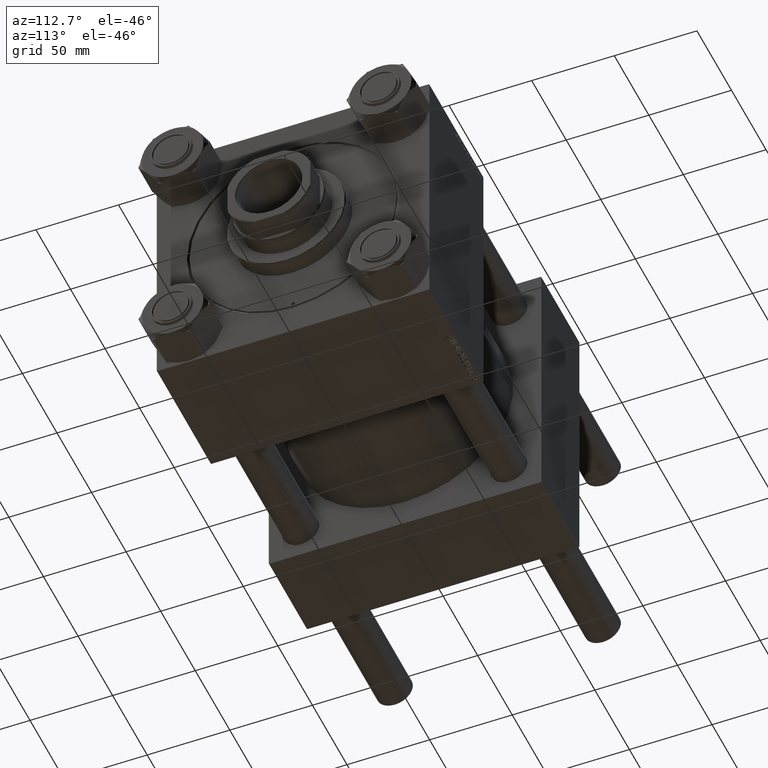
[diagram: clean part render]
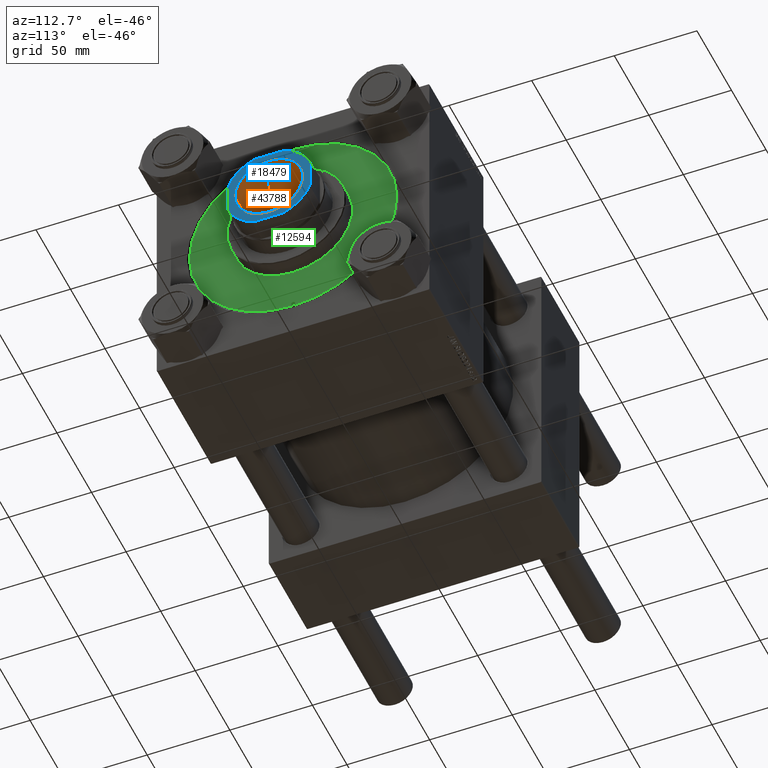
[diagram: same view with three faces highlighted in distinct colors, each labeled with its STEP entity id]
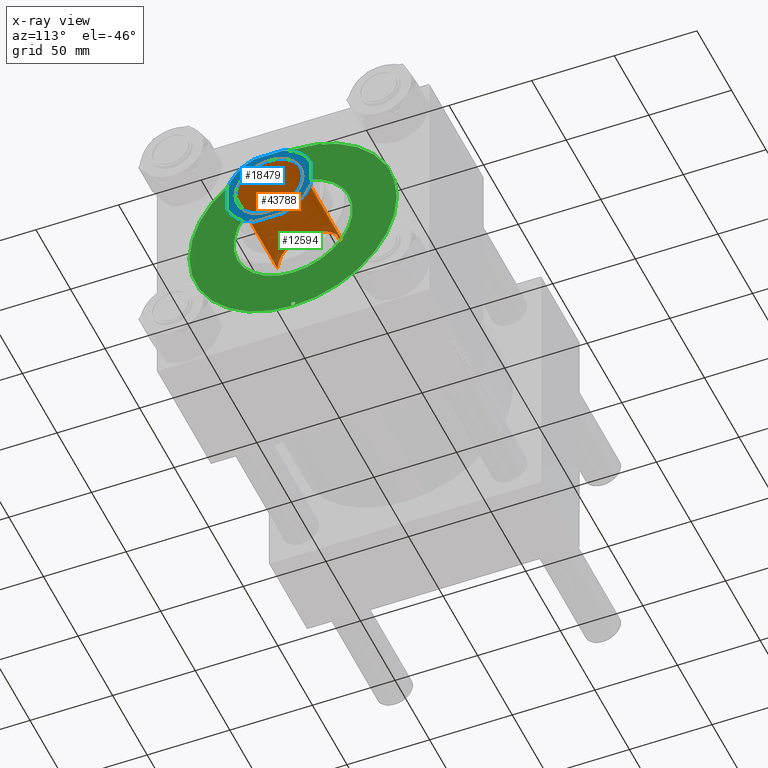
[diagram: x-ray of the same camera — body ghosted, the three highlighted faces saturated]
A machine part, auxiliary view with three faces highlighted in distinct colors.
The next image is the same camera in x-ray (body ghosted, the three faces saturated) — at least one of them is partly hidden behind the body in this view.
Their STEP definitions:

[orange] entity #43788 — the highlighted cylindrical surface (edge-blend (fillet) strip) has radius 20.25 mm, axis along (1, 0, -0).
#320 = CIRCLE ( 'NONE', #40222, 20.24999999999998934 ) ;
#1163 = DIRECTION ( 'NONE',  ( -0.000000000000000000, -0.000000000000000000, 1.000000000000000000 ) ) ;
#3609 = ORIENTED_EDGE ( 'NONE', *, *, #42634, .F. ) ;
#5746 = DIRECTION ( 'NONE',  ( 1.000000000000000000, 0.000000000000000000, 0.000000000000000000 ) ) ;
#5827 = ORIENTED_EDGE ( 'NONE', *, *, #22375, .T. ) ;
#6507 = DIRECTION ( 'NONE',  ( 0.000000000000000000, 0.000000000000000000, 1.000000000000000000 ) ) ;
#8590 = LINE ( 'NONE', #44257, #47718 ) ;
#9562 = CIRCLE ( 'NONE', #14329, 20.24999999999999289 ) ;
#13128 = CARTESIAN_POINT ( 'NONE',  ( 20.24999999999998934, 0.000000000000000000, 136.0000000000000000 ) ) ;
#13964 = CARTESIAN_POINT ( 'NONE',  ( 20.24999999999999289, 0.000000000000000000, 196.7000000000001023 ) ) ;
#14329 = AXIS2_PLACEMENT_3D ( 'NONE', #17985, #6507, #18244 ) ;
#16259 = LINE ( 'NONE', #28243, #17721 ) ;
#17010 = DIRECTION ( 'NONE',  ( -0.000000000000000000, -0.000000000000000000, 1.000000000000000000 ) ) ;
#17721 = VECTOR ( 'NONE', #17010, 1000.000000000000000 ) ;
#17985 = CARTESIAN_POINT ( 'NONE',  ( 0.000000000000000000, 0.000000000000000000, 196.7000000000001023 ) ) ;
#18113 = EDGE_CURVE ( 'NONE', #33487, #25080, #9562, .T. ) ;
#18244 = DIRECTION ( 'NONE',  ( 1.000000000000000000, 0.000000000000000000, 0.000000000000000000 ) ) ;
#18862 = EDGE_CURVE ( 'NONE', #41903, #25080, #8590, .T. ) ;
#21559 = CARTESIAN_POINT ( 'NONE',  ( 0.000000000000000000, 0.000000000000000000, 136.0000000000000000 ) ) ;
#22375 = EDGE_CURVE ( 'NONE', #49005, #33487, #16259, .T. ) ;
#24411 = CARTESIAN_POINT ( 'NONE',  ( -20.24999999999999289, 2.479909768273389511E-15, 196.7000000000001023 ) ) ;
#25080 = VERTEX_POINT ( 'NONE', #13964 ) ;
#27764 = CARTESIAN_POINT ( 'NONE',  ( 0.000000000000000000, 0.000000000000000000, 197.0000000000000000 ) ) ;
#28243 = CARTESIAN_POINT ( 'NONE',  ( -20.24999999999999289, 2.479909768273389511E-15, 197.0000000000000000 ) ) ;
#28774 = FACE_OUTER_BOUND ( 'NONE', #35339, .T. ) ;
#28956 = DIRECTION ( 'NONE',  ( -0.000000000000000000, -0.000000000000000000, 1.000000000000000000 ) ) ;
#30613 = AXIS2_PLACEMENT_3D ( 'NONE', #27764, #43565, #44315 ) ;
#33487 = VERTEX_POINT ( 'NONE', #24411 ) ;
#35339 = EDGE_LOOP ( 'NONE', ( #3609, #5827, #43770, #48861 ) ) ;
#39532 = CARTESIAN_POINT ( 'NONE',  ( -20.24999999999998934, 2.479909768273389117E-15, 136.0000000000000000 ) ) ;
#40222 = AXIS2_PLACEMENT_3D ( 'NONE', #21559, #28956, #5746 ) ;
#41903 = VERTEX_POINT ( 'NONE', #13128 ) ;
#42634 = EDGE_CURVE ( 'NONE', #49005, #41903, #320, .T. ) ;
#43565 = DIRECTION ( 'NONE',  ( -0.000000000000000000, -0.000000000000000000, 1.000000000000000000 ) ) ;
#43770 = ORIENTED_EDGE ( 'NONE', *, *, #18113, .T. ) ;
#43788 = ADVANCED_FACE ( 'NONE', ( #28774 ), #44061, .F. ) ;
#44061 = CYLINDRICAL_SURFACE ( 'NONE', #30613, 20.24999999999999289 ) ;
#44257 = CARTESIAN_POINT ( 'NONE',  ( 20.24999999999999289, 0.000000000000000000, 197.0000000000000000 ) ) ;
#44315 = DIRECTION ( 'NONE',  ( 1.000000000000000000, 0.000000000000000000, 0.000000000000000000 ) ) ;
#47718 = VECTOR ( 'NONE', #1163, 1000.000000000000000 ) ;
#48861 = ORIENTED_EDGE ( 'NONE', *, *, #18862, .F. ) ;
#49005 = VERTEX_POINT ( 'NONE', #39532 ) ;

[blue] entity #18479 — the highlighted planar face has unit normal (1, 0, -0).
#416 = EDGE_CURVE ( 'NONE', #611, #37411, #36644, .T. ) ;
#611 = VERTEX_POINT ( 'NONE', #34839 ) ;
#1098 = EDGE_CURVE ( 'NONE', #40628, #19901, #6418, .T. ) ;
#1659 = VECTOR ( 'NONE', #27994, 1000.000000000000000 ) ;
#2266 = CIRCLE ( 'NONE', #9664, 20.54999999999990123 ) ;
#2688 = CARTESIAN_POINT ( 'NONE',  ( 25.00000000000000355, 8.789197915623503832, 197.0000000000000000 ) ) ;
#3075 = DIRECTION ( 'NONE',  ( 1.000000000000000000, 0.000000000000000000, 0.000000000000000000 ) ) ;
#3245 = EDGE_CURVE ( 'NONE', #37411, #32639, #10127, .T. ) ;
#3558 = DIRECTION ( 'NONE',  ( -0.000000000000000000, 0.000000000000000000, 1.000000000000000000 ) ) ;
#3652 = ORIENTED_EDGE ( 'NONE', *, *, #24785, .T. ) ;
#4010 = ORIENTED_EDGE ( 'NONE', *, *, #3245, .T. ) ;
#4304 = PLANE ( 'NONE',  #43737 ) ;
#4508 = CARTESIAN_POINT ( 'NONE',  ( 0.000000000000000000, 0.000000000000000000, 197.0000000000000000 ) ) ;
#4538 = CARTESIAN_POINT ( 'NONE',  ( -24.99999999999999289, -25.00000000000000000, 197.0000000000000000 ) ) ;
#5404 = CIRCLE ( 'NONE', #42033, 26.50000000000008171 ) ;
#5411 = CARTESIAN_POINT ( 'NONE',  ( 0.000000000000000000, 0.000000000000000000, 197.0000000000000000 ) ) ;
#6012 = EDGE_CURVE ( 'NONE', #40192, #19705, #32584, .T. ) ;
#6275 = DIRECTION ( 'NONE',  ( 1.000000000000000000, 0.000000000000000000, 0.000000000000000000 ) ) ;
#6289 = CARTESIAN_POINT ( 'NONE',  ( -25.00000000000000000, 25.00000000000000000, 197.0000000000000000 ) ) ;
#6418 = LINE ( 'NONE', #15764, #28797 ) ;
#6537 = DIRECTION ( 'NONE',  ( 1.387778780781445676E-16, -1.000000000000000000, 0.000000000000000000 ) ) ;
#7062 = AXIS2_PLACEMENT_3D ( 'NONE', #4508, #20074, #43767 ) ;
#7842 = DIRECTION ( 'NONE',  ( 1.000000000000000000, 0.000000000000000000, 0.000000000000000000 ) ) ;
#8058 = VERTEX_POINT ( 'NONE', #37062 ) ;
#9322 = CARTESIAN_POINT ( 'NONE',  ( -20.54999999999990123, 2.516649172247798933E-15, 197.0000000000000000 ) ) ;
#9345 = VERTEX_POINT ( 'NONE', #17634 ) ;
#9380 = DIRECTION ( 'NONE',  ( -1.387778780781445676E-16, 1.000000000000000000, -0.000000000000000000 ) ) ;
#9664 = AXIS2_PLACEMENT_3D ( 'NONE', #21938, #37252, #15043 ) ;
#10127 = CIRCLE ( 'NONE', #13387, 26.50000000000004619 ) ;
#10687 = ORIENTED_EDGE ( 'NONE', *, *, #6012, .T. ) ;
#11441 = EDGE_CURVE ( 'NONE', #8058, #42724, #33892, .T. ) ;
#11611 = EDGE_LOOP ( 'NONE', ( #14983, #3652 ) ) ;
#13387 = AXIS2_PLACEMENT_3D ( 'NONE', #36112, #31050, #7842 ) ;
#13588 = ORIENTED_EDGE ( 'NONE', *, *, #20821, .T. ) ;
#14983 = ORIENTED_EDGE ( 'NONE', *, *, #11441, .T. ) ;
#15043 = DIRECTION ( 'NONE',  ( 1.000000000000000000, 0.000000000000000000, 0.000000000000000000 ) ) ;
#15764 = CARTESIAN_POINT ( 'NONE',  ( -25.00000000000000000, 25.00000000000000000, 197.0000000000000000 ) ) ;
#16074 = AXIS2_PLACEMENT_3D ( 'NONE', #5411, #17903, #17394 ) ;
#17206 = CARTESIAN_POINT ( 'NONE',  ( -8.789197915623610413, -25.00000000000000000, 197.0000000000000000 ) ) ;
#17394 = DIRECTION ( 'NONE',  ( 1.000000000000000000, 0.000000000000000000, 0.000000000000000000 ) ) ;
#17634 = CARTESIAN_POINT ( 'NONE',  ( 8.789197915623507384, -25.00000000000000000, 197.0000000000000000 ) ) ;
#17903 = DIRECTION ( 'NONE',  ( -0.000000000000000000, 0.000000000000000000, 1.000000000000000000 ) ) ;
#18239 = VECTOR ( 'NONE', #9380, 1000.000000000000000 ) ;
#18479 = ADVANCED_FACE ( 'NONE', ( #20126, #22947 ), #4304, .T. ) ;
#18892 = CARTESIAN_POINT ( 'NONE',  ( 0.000000000000000000, 0.000000000000000000, 197.0000000000000000 ) ) ;
#19537 = EDGE_CURVE ( 'NONE', #19901, #611, #5404, .T. ) ;
#19705 = VERTEX_POINT ( 'NONE', #2688 ) ;
#19901 = VERTEX_POINT ( 'NONE', #44967 ) ;
#20074 = DIRECTION ( 'NONE',  ( -0.000000000000000000, 0.000000000000000000, 1.000000000000000000 ) ) ;
#20126 = FACE_BOUND ( 'NONE', #11611, .T. ) ;
#20351 = CARTESIAN_POINT ( 'NONE',  ( 8.789197915623505608, 25.00000000000000000, 197.0000000000000000 ) ) ;
#20821 = EDGE_CURVE ( 'NONE', #19705, #40628, #46932, .T. ) ;
#21580 = ORIENTED_EDGE ( 'NONE', *, *, #416, .T. ) ;
#21938 = CARTESIAN_POINT ( 'NONE',  ( 0.000000000000000000, 0.000000000000000000, 197.0000000000000000 ) ) ;
#22204 = DIRECTION ( 'NONE',  ( -0.000000000000000000, 0.000000000000000000, 1.000000000000000000 ) ) ;
#22947 = FACE_OUTER_BOUND ( 'NONE', #34848, .T. ) ;
#23131 = EDGE_CURVE ( 'NONE', #9345, #40192, #43766, .T. ) ;
#23915 = LINE ( 'NONE', #4538, #1659 ) ;
#24093 = AXIS2_PLACEMENT_3D ( 'NONE', #25651, #41202, #6275 ) ;
#24785 = EDGE_CURVE ( 'NONE', #42724, #8058, #2266, .T. ) ;
#25651 = CARTESIAN_POINT ( 'NONE',  ( 0.000000000000000000, 0.000000000000000000, 197.0000000000000000 ) ) ;
#26990 = DIRECTION ( 'NONE',  ( -1.000000000000000000, -0.000000000000000000, -0.000000000000000000 ) ) ;
#27994 = DIRECTION ( 'NONE',  ( 1.000000000000000000, 0.000000000000000000, 0.000000000000000000 ) ) ;
#28797 = VECTOR ( 'NONE', #26990, 1000.000000000000000 ) ;
#31050 = DIRECTION ( 'NONE',  ( -0.000000000000000000, 0.000000000000000000, 1.000000000000000000 ) ) ;
#32584 = LINE ( 'NONE', #48123, #18239 ) ;
#32639 = VERTEX_POINT ( 'NONE', #17206 ) ;
#33589 = EDGE_CURVE ( 'NONE', #32639, #9345, #23915, .T. ) ;
#33892 = CIRCLE ( 'NONE', #24093, 20.54999999999990123 ) ;
#34682 = DIRECTION ( 'NONE',  ( 1.000000000000000000, 0.000000000000000000, 0.000000000000000000 ) ) ;
#34839 = CARTESIAN_POINT ( 'NONE',  ( -24.99999999999999645, 8.789197915623727653, 197.0000000000000000 ) ) ;
#34848 = EDGE_LOOP ( 'NONE', ( #10687, #13588, #41289, #44667, #21580, #4010, #46922, #40590 ) ) ;
#36112 = CARTESIAN_POINT ( 'NONE',  ( 0.000000000000000000, 0.000000000000000000, 197.0000000000000000 ) ) ;
#36644 = LINE ( 'NONE', #6289, #39347 ) ;
#37062 = CARTESIAN_POINT ( 'NONE',  ( 20.54999999999990123, 0.000000000000000000, 197.0000000000000000 ) ) ;
#37252 = DIRECTION ( 'NONE',  ( 0.000000000000000000, -0.000000000000000000, -1.000000000000000000 ) ) ;
#37411 = VERTEX_POINT ( 'NONE', #48031 ) ;
#38503 = CARTESIAN_POINT ( 'NONE',  ( 0.000000000000000000, 0.000000000000000000, 197.0000000000000000 ) ) ;
#39347 = VECTOR ( 'NONE', #6537, 1000.000000000000000 ) ;
#40192 = VERTEX_POINT ( 'NONE', #47708 ) ;
#40590 = ORIENTED_EDGE ( 'NONE', *, *, #23131, .T. ) ;
#40628 = VERTEX_POINT ( 'NONE', #20351 ) ;
#41202 = DIRECTION ( 'NONE',  ( 0.000000000000000000, -0.000000000000000000, -1.000000000000000000 ) ) ;
#41289 = ORIENTED_EDGE ( 'NONE', *, *, #1098, .T. ) ;
#42033 = AXIS2_PLACEMENT_3D ( 'NONE', #18892, #22204, #3075 ) ;
#42724 = VERTEX_POINT ( 'NONE', #9322 ) ;
#43737 = AXIS2_PLACEMENT_3D ( 'NONE', #38503, #3558, #34682 ) ;
#43766 = CIRCLE ( 'NONE', #16074, 26.50000000000001421 ) ;
#43767 = DIRECTION ( 'NONE',  ( 1.000000000000000000, 0.000000000000000000, 0.000000000000000000 ) ) ;
#44667 = ORIENTED_EDGE ( 'NONE', *, *, #19537, .T. ) ;
#44967 = CARTESIAN_POINT ( 'NONE',  ( -8.789197915623715218, 25.00000000000000000, 197.0000000000000000 ) ) ;
#46922 = ORIENTED_EDGE ( 'NONE', *, *, #33589, .T. ) ;
#46932 = CIRCLE ( 'NONE', #7062, 26.50000000000001421 ) ;
#47708 = CARTESIAN_POINT ( 'NONE',  ( 25.00000000000000355, -8.789197915623498503, 197.0000000000000000 ) ) ;
#48031 = CARTESIAN_POINT ( 'NONE',  ( -24.99999999999999645, -8.789197915623628177, 197.0000000000000000 ) ) ;
#48123 = CARTESIAN_POINT ( 'NONE',  ( 25.00000000000000000, 25.00000000000000000, 197.0000000000000000 ) ) ;

[green] entity #12594 — the highlighted planar face has unit normal (1, 0, -0).
#793 = DIRECTION ( 'NONE',  ( 1.000000000000000000, 0.000000000000000000, 0.000000000000000000 ) ) ;
#870 = CIRCLE ( 'NONE', #29395, 62.75000000000000000 ) ;
#2297 = CIRCLE ( 'NONE', #3952, 1.250000000000001110 ) ;
#2866 = ORIENTED_EDGE ( 'NONE', *, *, #42129, .F. ) ;
#3507 = VERTEX_POINT ( 'NONE', #30238 ) ;
#3671 = AXIS2_PLACEMENT_3D ( 'NONE', #24266, #35744, #793 ) ;
#3952 = AXIS2_PLACEMENT_3D ( 'NONE', #21628, #45830, #10147 ) ;
#4460 = DIRECTION ( 'NONE',  ( 1.000000000000000000, 0.000000000000000000, 0.000000000000000000 ) ) ;
#4897 = VERTEX_POINT ( 'NONE', #15577 ) ;
#5296 = EDGE_LOOP ( 'NONE', ( #48347, #12855 ) ) ;
#5948 = DIRECTION ( 'NONE',  ( 0.000000000000000000, 0.000000000000000000, 1.000000000000000000 ) ) ;
#6675 = CIRCLE ( 'NONE', #23774, 36.00000000000000000 ) ;
#7976 = EDGE_LOOP ( 'NONE', ( #34088, #16607 ) ) ;
#8745 = CARTESIAN_POINT ( 'NONE',  ( 0.000000000000000000, 0.000000000000000000, 28.69999999999999929 ) ) ;
#9173 = EDGE_CURVE ( 'NONE', #3507, #38900, #13457, .T. ) ;
#9188 = DIRECTION ( 'NONE',  ( 1.000000000000000000, 0.000000000000000000, 0.000000000000000000 ) ) ;
#9206 = EDGE_LOOP ( 'NONE', ( #41894, #25425 ) ) ;
#9440 = CARTESIAN_POINT ( 'NONE',  ( -61.00000000000000000, 0.000000000000000000, 28.69999999999999929 ) ) ;
#10147 = DIRECTION ( 'NONE',  ( 1.000000000000000000, 0.000000000000000000, 0.000000000000000000 ) ) ;
#10245 = CARTESIAN_POINT ( 'NONE',  ( -59.75000000000000000, 0.000000000000000000, 28.69999999999999929 ) ) ;
#11247 = VERTEX_POINT ( 'NONE', #16863 ) ;
#12458 = CIRCLE ( 'NONE', #40967, 1.250000000000001110 ) ;
#12594 = ADVANCED_FACE ( 'NONE', ( #25842, #21257, #36811, #32479 ), #29164, .T. ) ;
#12855 = ORIENTED_EDGE ( 'NONE', *, *, #35039, .T. ) ;
#13457 = CIRCLE ( 'NONE', #3671, 36.00000000000000000 ) ;
#13555 = CARTESIAN_POINT ( 'NONE',  ( -61.00000000000000000, 0.000000000000000000, 28.69999999999999929 ) ) ;
#13808 = DIRECTION ( 'NONE',  ( 1.000000000000000000, 0.000000000000000000, 0.000000000000000000 ) ) ;
#15577 = CARTESIAN_POINT ( 'NONE',  ( 62.75000000000000000, 7.684658664649641591E-15, 28.69999999999999929 ) ) ;
#15919 = VERTEX_POINT ( 'NONE', #21383 ) ;
#16607 = ORIENTED_EDGE ( 'NONE', *, *, #9173, .F. ) ;
#16819 = CARTESIAN_POINT ( 'NONE',  ( 61.00000000000000000, 0.000000000000000000, 28.69999999999999929 ) ) ;
#16863 = CARTESIAN_POINT ( 'NONE',  ( 62.25000000000000000, 0.000000000000000000, 28.69999999999999929 ) ) ;
#17465 = EDGE_LOOP ( 'NONE', ( #32131, #2866 ) ) ;
#17630 = VERTEX_POINT ( 'NONE', #10245 ) ;
#17872 = EDGE_CURVE ( 'NONE', #11247, #15919, #19331, .T. ) ;
#17991 = CIRCLE ( 'NONE', #46491, 62.75000000000000000 ) ;
#19331 = CIRCLE ( 'NONE', #25836, 1.250000000000001110 ) ;
#19812 = DIRECTION ( 'NONE',  ( 1.000000000000000000, 0.000000000000000000, 0.000000000000000000 ) ) ;
#20724 = DIRECTION ( 'NONE',  ( 1.000000000000000000, 0.000000000000000000, 0.000000000000000000 ) ) ;
#21257 = FACE_BOUND ( 'NONE', #9206, .T. ) ;
#21383 = CARTESIAN_POINT ( 'NONE',  ( 59.75000000000000000, 1.530808498934184175E-16, 28.69999999999999929 ) ) ;
#21628 = CARTESIAN_POINT ( 'NONE',  ( 61.00000000000000000, 0.000000000000000000, 28.69999999999999929 ) ) ;
#23774 = AXIS2_PLACEMENT_3D ( 'NONE', #35574, #42974, #4460 ) ;
#24266 = CARTESIAN_POINT ( 'NONE',  ( 0.000000000000000000, 0.000000000000000000, 28.69999999999999929 ) ) ;
#24291 = DIRECTION ( 'NONE',  ( 0.000000000000000000, 0.000000000000000000, 1.000000000000000000 ) ) ;
#24454 = CARTESIAN_POINT ( 'NONE',  ( -62.75000000000000000, 0.000000000000000000, 28.69999999999999929 ) ) ;
#25078 = EDGE_CURVE ( 'NONE', #15919, #11247, #2297, .T. ) ;
#25425 = ORIENTED_EDGE ( 'NONE', *, *, #25078, .F. ) ;
#25836 = AXIS2_PLACEMENT_3D ( 'NONE', #16819, #32379, #28047 ) ;
#25842 = FACE_BOUND ( 'NONE', #17465, .T. ) ;
#28047 = DIRECTION ( 'NONE',  ( 1.000000000000000000, 0.000000000000000000, 0.000000000000000000 ) ) ;
#29164 = PLANE ( 'NONE',  #32282 ) ;
#29165 = VERTEX_POINT ( 'NONE', #24454 ) ;
#29395 = AXIS2_PLACEMENT_3D ( 'NONE', #8745, #24291, #20724 ) ;
#29413 = CARTESIAN_POINT ( 'NONE',  ( 0.000000000000000000, 0.000000000000000000, 28.69999999999999929 ) ) ;
#30238 = CARTESIAN_POINT ( 'NONE',  ( 36.00000000000000000, 4.408728476930470856E-15, 28.69999999999999929 ) ) ;
#31026 = EDGE_CURVE ( 'NONE', #29165, #4897, #870, .T. ) ;
#32109 = CIRCLE ( 'NONE', #33717, 1.250000000000001110 ) ;
#32131 = ORIENTED_EDGE ( 'NONE', *, *, #47160, .F. ) ;
#32282 = AXIS2_PLACEMENT_3D ( 'NONE', #29413, #5948, #37069 ) ;
#32290 = DIRECTION ( 'NONE',  ( 0.000000000000000000, 0.000000000000000000, 1.000000000000000000 ) ) ;
#32379 = DIRECTION ( 'NONE',  ( 0.000000000000000000, 0.000000000000000000, 1.000000000000000000 ) ) ;
#32479 = FACE_OUTER_BOUND ( 'NONE', #5296, .T. ) ;
#32681 = DIRECTION ( 'NONE',  ( 0.000000000000000000, 0.000000000000000000, 1.000000000000000000 ) ) ;
#33717 = AXIS2_PLACEMENT_3D ( 'NONE', #9440, #47932, #9188 ) ;
#34088 = ORIENTED_EDGE ( 'NONE', *, *, #37303, .F. ) ;
#35039 = EDGE_CURVE ( 'NONE', #4897, #29165, #17991, .T. ) ;
#35574 = CARTESIAN_POINT ( 'NONE',  ( 0.000000000000000000, 0.000000000000000000, 28.69999999999999929 ) ) ;
#35744 = DIRECTION ( 'NONE',  ( 0.000000000000000000, 0.000000000000000000, 1.000000000000000000 ) ) ;
#36811 = FACE_BOUND ( 'NONE', #7976, .T. ) ;
#37069 = DIRECTION ( 'NONE',  ( 1.000000000000000000, 0.000000000000000000, -0.000000000000000000 ) ) ;
#37303 = EDGE_CURVE ( 'NONE', #38900, #3507, #6675, .T. ) ;
#38377 = CARTESIAN_POINT ( 'NONE',  ( -36.00000000000000000, 0.000000000000000000, 28.69999999999999929 ) ) ;
#38900 = VERTEX_POINT ( 'NONE', #38377 ) ;
#39440 = CARTESIAN_POINT ( 'NONE',  ( 0.000000000000000000, 0.000000000000000000, 28.69999999999999929 ) ) ;
#40967 = AXIS2_PLACEMENT_3D ( 'NONE', #13555, #32681, #13808 ) ;
#41894 = ORIENTED_EDGE ( 'NONE', *, *, #17872, .F. ) ;
#42129 = EDGE_CURVE ( 'NONE', #44933, #17630, #32109, .T. ) ;
#42974 = DIRECTION ( 'NONE',  ( 0.000000000000000000, 0.000000000000000000, 1.000000000000000000 ) ) ;
#43025 = CARTESIAN_POINT ( 'NONE',  ( -62.25000000000000000, 1.530808498934184175E-16, 28.69999999999999929 ) ) ;
#44933 = VERTEX_POINT ( 'NONE', #43025 ) ;
#45830 = DIRECTION ( 'NONE',  ( 0.000000000000000000, 0.000000000000000000, 1.000000000000000000 ) ) ;
#46491 = AXIS2_PLACEMENT_3D ( 'NONE', #39440, #32290, #19812 ) ;
#47160 = EDGE_CURVE ( 'NONE', #17630, #44933, #12458, .T. ) ;
#47932 = DIRECTION ( 'NONE',  ( 0.000000000000000000, 0.000000000000000000, 1.000000000000000000 ) ) ;
#48347 = ORIENTED_EDGE ( 'NONE', *, *, #31026, .T. ) ;